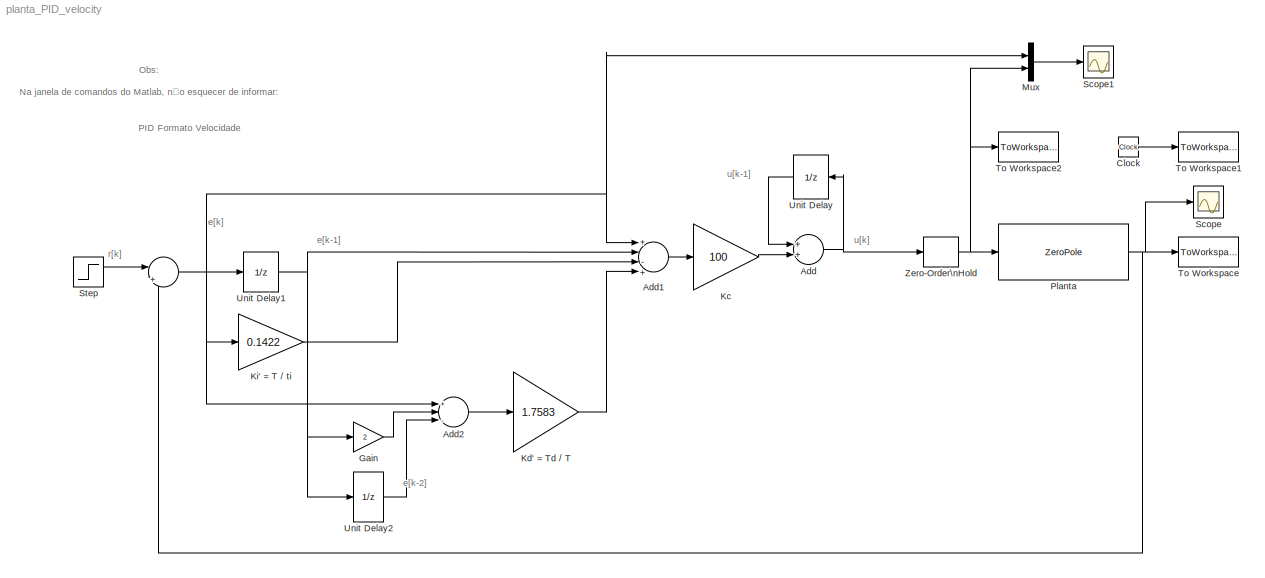
MODEL planta_PID_velocity
KIND model
BLOCK [Sum]  
  IconShape = round
  InputSameDT = off
  Inputs = ||+|-
  OutDataTypeStr = Inherit: Inherit via internal rule
  Ports = [2, 1]
  SID = 2
  SaturateOnIntegerOverflow = off
BLOCK [Sum] Add
  InputSameDT = off
  OutDataTypeStr = Inherit: Inherit via internal rule
  Ports = [2, 1]
  SID = 10
  SaturateOnIntegerOverflow = off
BLOCK [Sum] Add1
  InputSameDT = off
  Inputs = +|-|+|+
  OutDataTypeStr = Inherit: Inherit via internal rule
  Ports = [4, 1]
  SID = 14
  SaturateOnIntegerOverflow = off
BLOCK [Sum] Add2
  InputSameDT = off
  Inputs = +|-|+
  OutDataTypeStr = Inherit: Inherit via internal rule
  Ports = [3, 1]
  SID = 16
  SaturateOnIntegerOverflow = off
BLOCK [Clock] Clock
  SID = 7
BLOCK [Gain] Gain
  Gain = 2
  OutDataTypeStr = Inherit: Inherit via internal rule
  ParamDataTypeStr = Inherit: Inherit via internal rule
  SID = 18
  SaturateOnIntegerOverflow = off
BLOCK [Gain] Kc
  Gain = 100
  OutDataTypeStr = Inherit: Inherit via internal rule
  ParamDataTypeStr = Inherit: Inherit via internal rule
  SID = 3
  SaturateOnIntegerOverflow = off
BLOCK [Gain] Kd' = Td // T
  Gain = 1.7583
  OutDataTypeStr = Inherit: Inherit via internal rule
  ParamDataTypeStr = Inherit: Inherit via internal rule
  SID = 17
  SaturateOnIntegerOverflow = off
BLOCK [Gain] Ki' = T // ti
  Gain = 0.1422
  OutDataTypeStr = Inherit: Inherit via internal rule
  ParamDataTypeStr = Inherit: Inherit via internal rule
  SID = 15
  SaturateOnIntegerOverflow = off
BLOCK [Mux] Mux
  DisplayOption = bar
  Inputs = 2
  Ports = [2, 1]
  SID = 26
BLOCK [ZeroPole] Planta
  Poles = [-1  -2   -10]
  SID = 5
  Zeros = [ ]
BLOCK [Scope] Scope
  Floating = off
  NumInputPorts = 1
  Ports = [1]
  SID = 9
  ScopeSpecificationString = Simulink.scopes.TimeScopeBlockCfg('CurrentConfiguration', extmgr.ConfigurationSet(extmgr.Configuration('Core','General UI',true,'FigureColor',[1 1 1]),extmgr.Configuration('Core','Source UI',true),extmgr.Configuration('Sources','WiredSimulink',true,'DataLoggingLimitDataPoints',true,'DataLoggingSaveFormat','Array','DataLoggingDecimation','1','DataLoggingDecimateData',true),extmgr.Configuration('Vis...<+3054ch>
BLOCK [Scope] Scope1
  Floating = off
  NumInputPorts = 1
  Ports = [1]
  SID = 27
  ScopeSpecificationString = Simulink.scopes.TimeScopeBlockCfg('CurrentConfiguration', extmgr.ConfigurationSet(extmgr.Configuration('Core','General UI',true),extmgr.Configuration('Core','Source UI',true),extmgr.Configuration('Sources','WiredSimulink',true,'DataLoggingVariableName','ScopeData1','DataLoggingLimitDataPoints',true,'DataLoggingSaveFormat','Array','DataLoggingDecimation','1','DataLoggingDecimateData',true),extmgr.C...<+1694ch>
BLOCK [Step] Step
  SID = 1
  SampleTime = 0
  Time = 0
BLOCK [ToWorkspace] To Workspace
  FixptAsFi = on
  MaxDataPoints = inf
  Ports = [1]
  SID = 6
  SampleTime = -1
  SaveFormat = Timeseries
  VariableName = y
BLOCK [ToWorkspace] To Workspace1
  FixptAsFi = on
  MaxDataPoints = inf
  Ports = [1]
  SID = 8
  SampleTime = -1
  VariableName = t
BLOCK [ToWorkspace] To Workspace2
  FixptAsFi = on
  MaxDataPoints = inf
  Ports = [1]
  SID = 25
  SampleTime = T
  SaveFormat = Timeseries
  VariableName = u
BLOCK [UnitDelay] Unit Delay
  HasFrameUpgradeWarning = on
  SID = 11
  SampleTime = T
BLOCK [UnitDelay] Unit Delay1
  HasFrameUpgradeWarning = on
  SID = 12
  SampleTime = T
BLOCK [UnitDelay] Unit Delay2
  HasFrameUpgradeWarning = on
  SID = 13
  SampleTime = T
BLOCK [ZeroOrderHold] Zero-Order\nHold
  SID = 4
  SampleTime = T
ANNOTATION (root): \n \n Obs: \n Na janela de comandos do Matlab, não esquecer de informar: \n >> T = 0.1; % periodo de amostragem
ANNOTATION (root): \n \n e[k-1]
ANNOTATION (root): \n \n e[k-2]
ANNOTATION (root): \n \n e[k]
ANNOTATION (root): \n \n r[k]
ANNOTATION (root): \n \n u[k-1]
ANNOTATION (root): \n \n u[k]
ANNOTATION (root): PID Formato Velocidade
NET  :1 -> Add1:1, Add2:1, Ki' = T // ti:1, Mux:1, Unit Delay1:1
LINE Add1:1 -> Kc:1
LINE Add2:1 -> Kd' = Td // T:1
NET Add:1 -> Unit Delay:1, Zero-Order\nHold:1
LINE Clock:1 -> To Workspace1:1
LINE Gain:1 -> Add2:2
LINE Kc:1 -> Add:2
LINE Kd' = Td // T:1 -> Add1:4
LINE Ki' = T // ti:1 -> Add1:3
LINE Mux:1 -> Scope1:1
NET Planta:1 ->  :2, Scope:1, To Workspace:1
LINE Step:1 ->  :1
NET Unit Delay1:1 -> Add1:2, Gain:1, Unit Delay2:1
LINE Unit Delay2:1 -> Add2:3
LINE Unit Delay:1 -> Add:1
NET Zero-Order\nHold:1 -> Mux:2, Planta:1, To Workspace2:1
note: NET lines group one-source signal fan-out (src -> all destinations, sorted); 1:1 wires keep LINE
